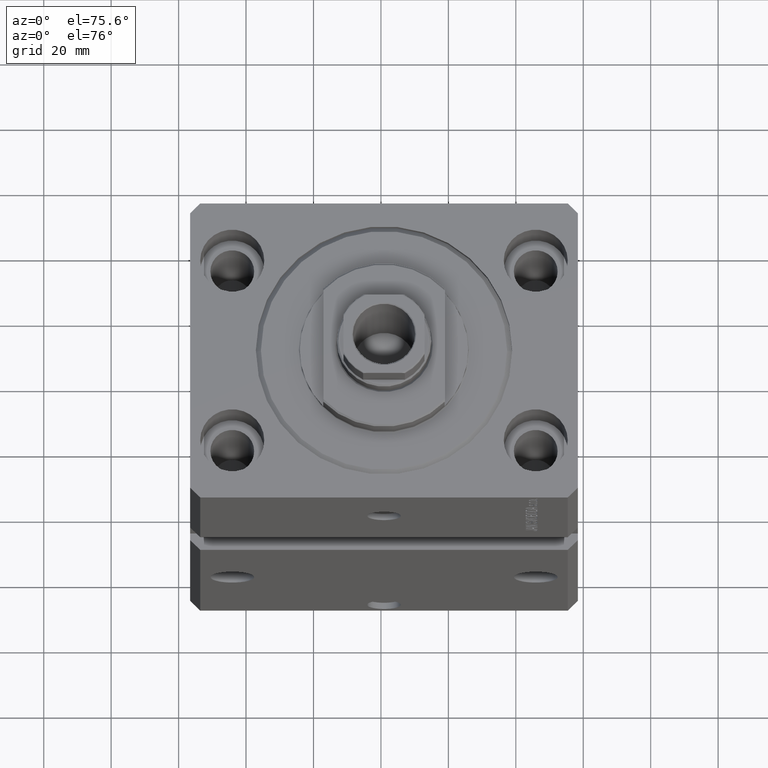
[diagram: clean part render]
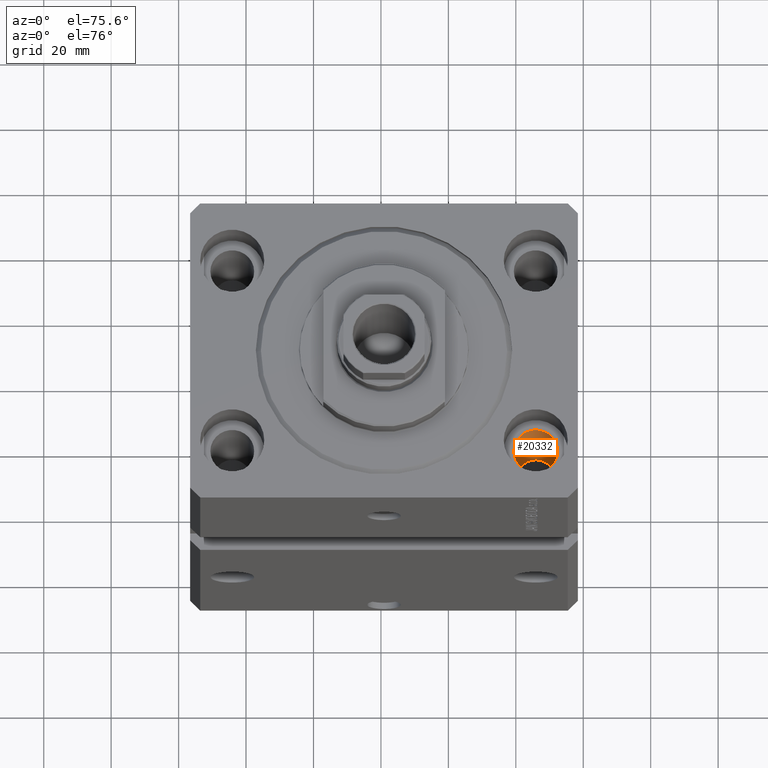
[diagram: same view with one face highlighted and labeled with its STEP entity id]
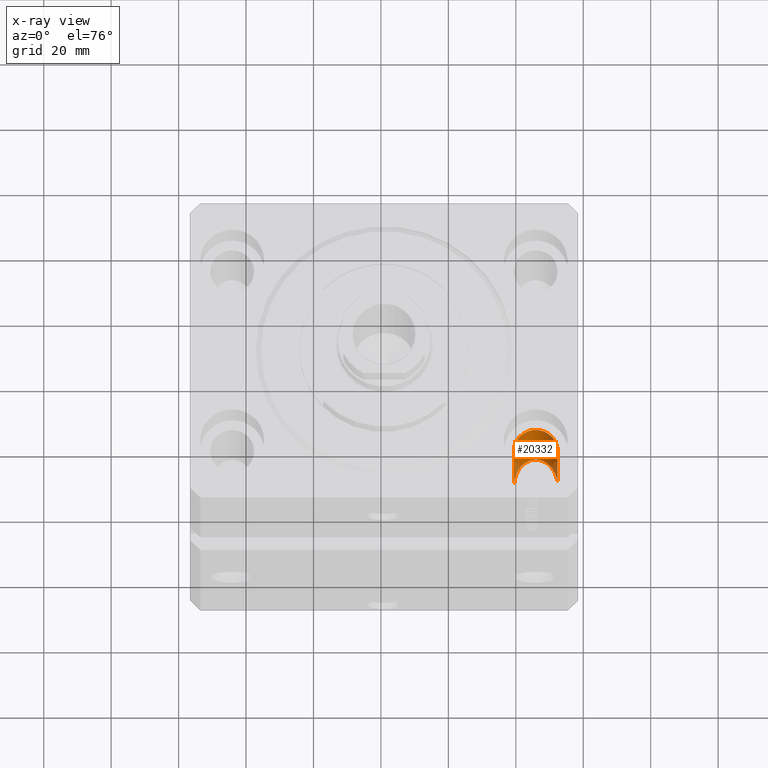
[diagram: x-ray of the same camera — body ghosted, the highlighted face saturated]
A machine part, auxiliary view. The second image highlights one B-rep face of the part: STEP entity #20332.
The next image is the same camera in x-ray: the body ghosted, the highlighted face saturated — about 9% of this face is hidden behind the body in this view.
In plain terms, the highlighted cylindrical surface (edge-blend (fillet) strip) has radius 6.5 mm, axis along (0, 0, 1).
Its self-contained STEP definition (entity closure, byte-faithful):
#6037 = LINE ( 'NONE', #43378, #23892 ) ;
#9564 = ORIENTED_EDGE ( 'NONE', *, *, #12193, .T. ) ;
#10232 = CARTESIAN_POINT ( 'NONE',  ( 51.50000000000000000, -27.49999999999999645, -13.00000000000000000 ) ) ;
#12193 = EDGE_CURVE ( 'NONE', #44172, #27325, #17943, .T. ) ;
#12844 = CARTESIAN_POINT ( 'NONE',  ( 51.50000000000000711, -14.49999999999999822, -41.99999999999999289 ) ) ;
#13249 = DIRECTION ( 'NONE',  ( -0.000000000000000000, -0.000000000000000000, 1.000000000000000000 ) ) ;
#14155 = VERTEX_POINT ( 'NONE', #16499 ) ;
#15583 = CARTESIAN_POINT ( 'NONE',  ( 38.50000000000000711, -27.49999999999999645, -54.99999999999999289 ) ) ;
#15639 = VECTOR ( 'NONE', #43976, 1000.000000000000000 ) ;
#16100 = CYLINDRICAL_SURFACE ( 'NONE', #27090, 6.499999999999999112 ) ;
#16499 = CARTESIAN_POINT ( 'NONE',  ( 38.50000000000000000, -27.49999999999999645, -13.00000000000000000 ) ) ;
#16593 = DIRECTION ( 'NONE',  ( -0.000000000000000000, -0.000000000000000000, 1.000000000000000000 ) ) ;
#16777 = DIRECTION ( 'NONE',  ( 1.000000000000000000, 0.000000000000000000, 0.000000000000000000 ) ) ;
#16793 = ORIENTED_EDGE ( 'NONE', *, *, #48979, .T. ) ;
#17020 = DIRECTION ( 'NONE',  ( 0.000000000000000000, 0.000000000000000000, 1.000000000000000000 ) ) ;
#17943 =( BOUNDED_CURVE ( )  B_SPLINE_CURVE ( 3, ( #15583, #46201, #12844, #46687 ),
 .UNSPECIFIED., .F., .F. ) 
 B_SPLINE_CURVE_WITH_KNOTS ( ( 4, 4 ),
 ( 4.712388980384689674, 7.853981633974482790 ),
 .UNSPECIFIED. ) 
 CURVE ( )  GEOMETRIC_REPRESENTATION_ITEM ( )  RATIONAL_B_SPLINE_CURVE ( ( 1.000000000000000000, 0.3333333333333333703, 0.3333333333333333703, 1.000000000000000000 ) ) 
 REPRESENTATION_ITEM ( '' )  );
#18302 = LINE ( 'NONE', #33238, #15639 ) ;
#19173 = EDGE_CURVE ( 'NONE', #27325, #31617, #6037, .T. ) ;
#20331 = CARTESIAN_POINT ( 'NONE',  ( 45.00000000000000000, -27.49999999999999645, -135.0000000000000000 ) ) ;
#20332 = ADVANCED_FACE ( 'NONE', ( #35021 ), #16100, .F. ) ;
#22329 = CIRCLE ( 'NONE', #46152, 6.499999999999999112 ) ;
#23892 = VECTOR ( 'NONE', #13249, 1000.000000000000000 ) ;
#24993 = CARTESIAN_POINT ( 'NONE',  ( 45.00000000000000000, -27.49999999999999645, -13.00000000000000000 ) ) ;
#27090 = AXIS2_PLACEMENT_3D ( 'NONE', #20331, #16593, #44408 ) ;
#27325 = VERTEX_POINT ( 'NONE', #48442 ) ;
#28870 = EDGE_LOOP ( 'NONE', ( #42352, #9564, #33867, #16793 ) ) ;
#31617 = VERTEX_POINT ( 'NONE', #10232 ) ;
#33238 = CARTESIAN_POINT ( 'NONE',  ( 38.50000000000000000, -27.49999999999999645, -135.0000000000000000 ) ) ;
#33867 = ORIENTED_EDGE ( 'NONE', *, *, #19173, .T. ) ;
#35021 = FACE_OUTER_BOUND ( 'NONE', #28870, .T. ) ;
#36059 = EDGE_CURVE ( 'NONE', #44172, #14155, #18302, .T. ) ;
#42352 = ORIENTED_EDGE ( 'NONE', *, *, #36059, .F. ) ;
#43378 = CARTESIAN_POINT ( 'NONE',  ( 51.50000000000000000, -27.49999999999999645, -135.0000000000000000 ) ) ;
#43976 = DIRECTION ( 'NONE',  ( -0.000000000000000000, -0.000000000000000000, 1.000000000000000000 ) ) ;
#44172 = VERTEX_POINT ( 'NONE', #48513 ) ;
#44408 = DIRECTION ( 'NONE',  ( 1.000000000000000000, 0.000000000000000000, 0.000000000000000000 ) ) ;
#46152 = AXIS2_PLACEMENT_3D ( 'NONE', #24993, #17020, #16777 ) ;
#46201 = CARTESIAN_POINT ( 'NONE',  ( 38.49999999999999289, -14.50000000000000355, -41.99999999999999289 ) ) ;
#46687 = CARTESIAN_POINT ( 'NONE',  ( 51.50000000000000711, -27.49999999999999645, -54.99999999999999289 ) ) ;
#48442 = CARTESIAN_POINT ( 'NONE',  ( 51.50000000000000711, -27.49999999999999645, -54.99999999999999289 ) ) ;
#48513 = CARTESIAN_POINT ( 'NONE',  ( 38.50000000000000711, -27.49999999999999645, -54.99999999999999289 ) ) ;
#48979 = EDGE_CURVE ( 'NONE', #31617, #14155, #22329, .T. ) ;